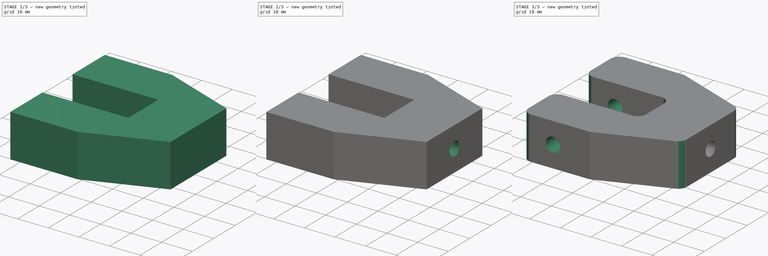
[diagram: build sequence overview — one tinted view per stage of 3, left to right]
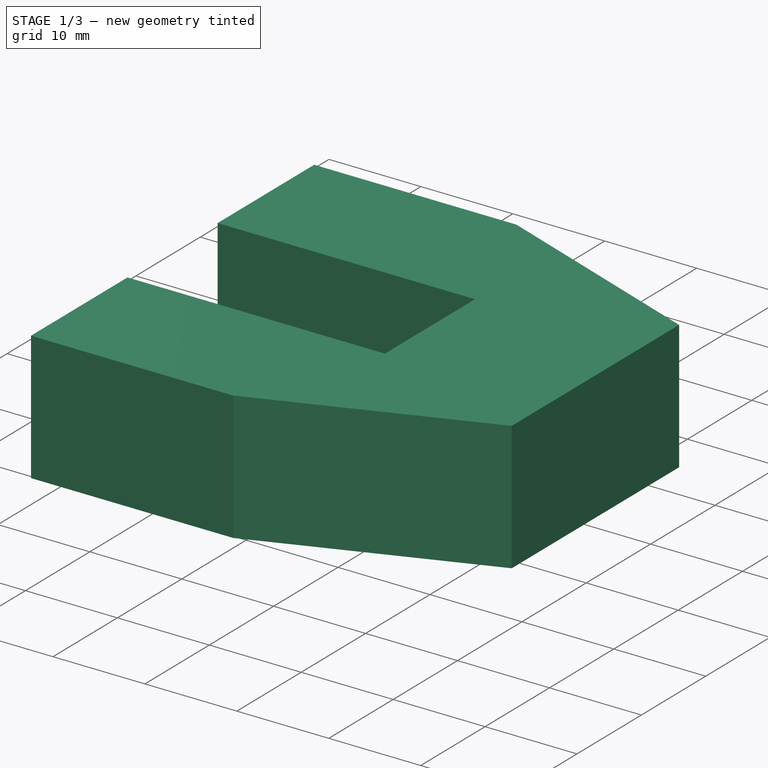
[diagram: stage 1 of 3 — iso view after this stage's code; geometry added in this stage tinted green]
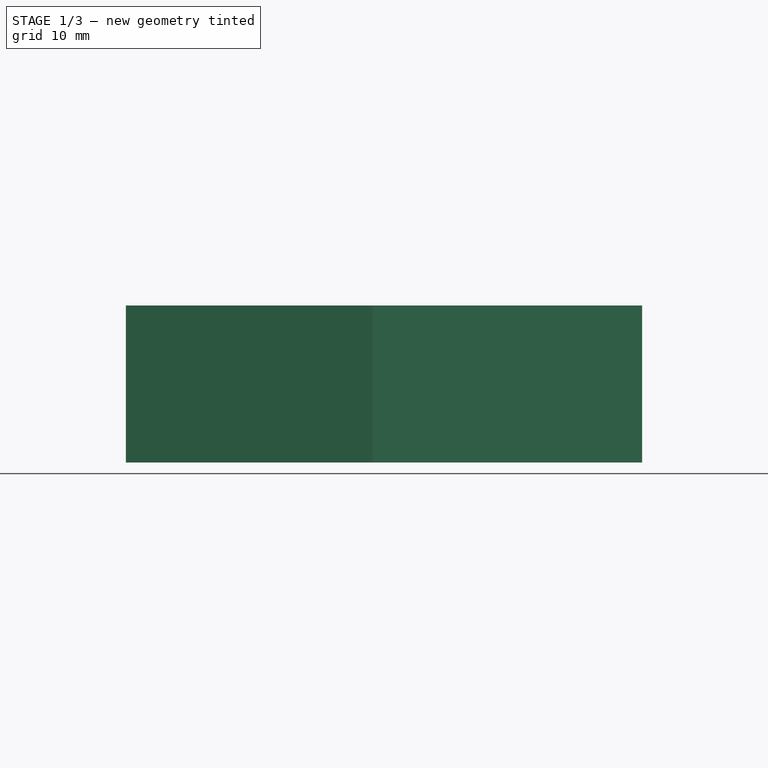
[diagram: stage 1 of 3 — front view after this stage's code; geometry added in this stage tinted green]
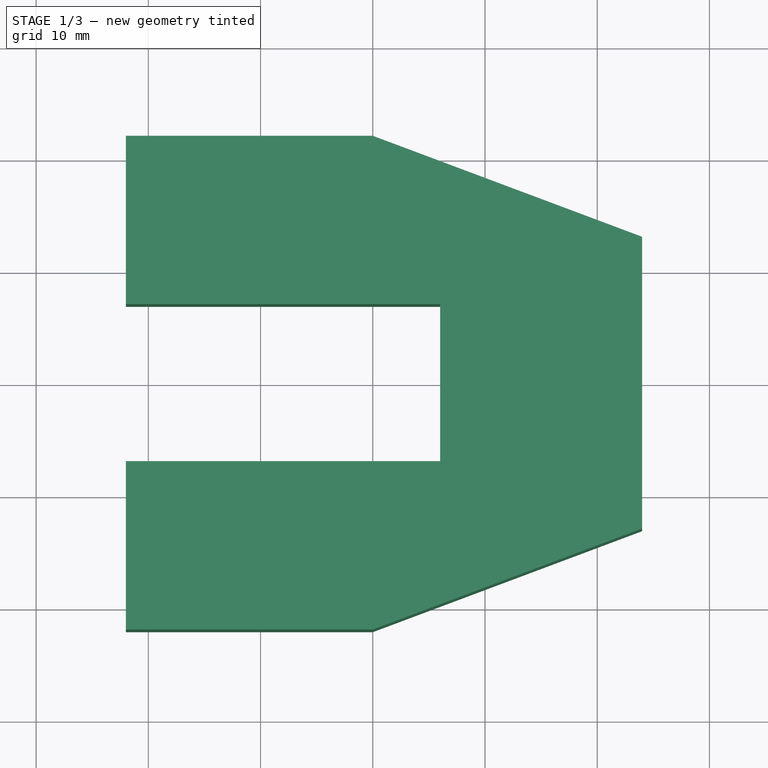
[diagram: stage 1 of 3 — top view after this stage's code; geometry added in this stage tinted green]
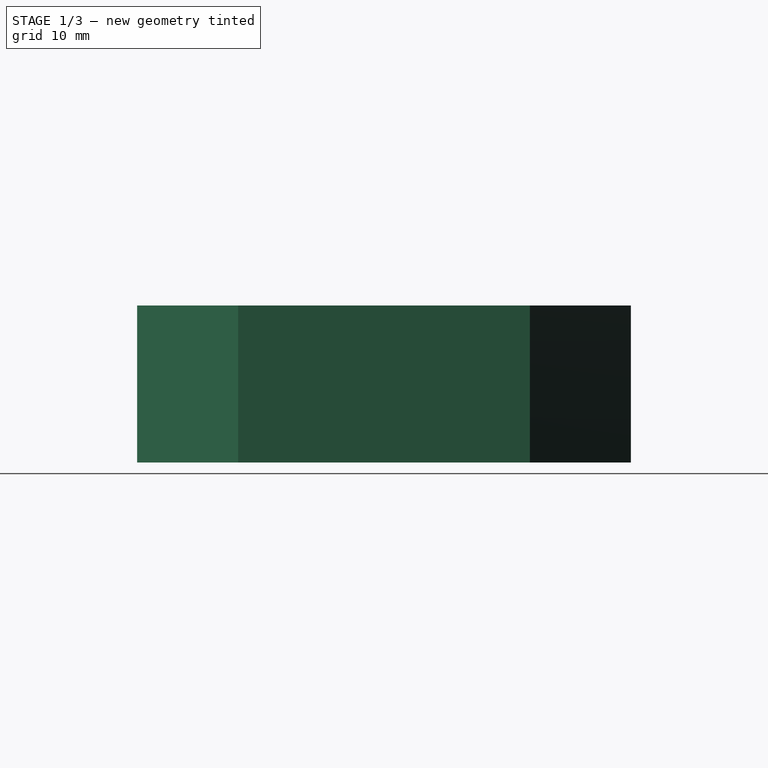
[diagram: stage 1 of 3 — right view after this stage's code; geometry added in this stage tinted green]
FCSTD DOCUMENT  (FreeCAD 0.18R16145 (Git))
Label: steering_fork
License: All rights reserved
LicenseURL: http://en.wikipedia.org/wiki/All_rights_reserved
objects: Sketcher::SketchObject×4, PartDesign::Pocket×3, PartDesign::Pad×1, PartDesign::Fillet×1, PartDesign::Body×1
note: 14 computed .brp shape members not serialized (recipe doc carries the construction recipe); baked Part::Feature solids carry a one-line shape summary decoded from their .brp

FEATURE [Sketcher::SketchObject] Sketch
  MapMode = 5
  Support = -> [XY_Plane]
  expr: Constraints[19] = Constraints.clearance_top
  sketch-geometry (16):
    g0: LineSegment [constr] StartX=-150 StartY=6 StartZ=0 EndX=0 EndY=6 EndZ=0
    g1: LineSegment [constr] StartX=0 StartY=6 StartZ=0 EndX=0 EndY=-6 EndZ=0
    g2: LineSegment [constr] StartX=0 StartY=-6 StartZ=0 EndX=-150 EndY=-6 EndZ=0
    g3: LineSegment [constr] StartX=-150 StartY=-6 StartZ=0 EndX=-150 EndY=6 EndZ=0
    g4: LineSegment StartX=-22 StartY=7 StartZ=0 EndX=6 EndY=7 EndZ=0
    g5: LineSegment StartX=6 StartY=7 StartZ=0 EndX=6 EndY=-7 EndZ=0
    g6: LineSegment StartX=6 StartY=-7 StartZ=0 EndX=-22 EndY=-7 EndZ=0
    g7: GeomPoint X=-12 Y=0 Z=0
    g8: LineSegment StartX=-22 StartY=7 StartZ=0 EndX=-22 EndY=22 EndZ=0
    g9: LineSegment StartX=-22 StartY=22 StartZ=0 EndX=0 EndY=22 EndZ=0
    g10: LineSegment StartX=0 StartY=-22 StartZ=0 EndX=24 EndY=-13 EndZ=0
    g11: LineSegment StartX=24 StartY=-13 StartZ=0 EndX=24 EndY=13 EndZ=0
    g12: LineSegment StartX=24 StartY=13 StartZ=0 EndX=0 EndY=22 EndZ=0
    g13: LineSegment [constr] StartX=0 StartY=22 StartZ=0 EndX=0 EndY=-22 EndZ=0
    g14: LineSegment StartX=-22 StartY=-7 StartZ=0 EndX=-22 EndY=-22 EndZ=0
    g15: LineSegment StartX=-22 StartY=-22 StartZ=0 EndX=0 EndY=-22 EndZ=0
  constraints (43):
    c: Coincident(g0,g1)
    c: Coincident(g1,g2)
    c: Coincident(g2,g3)
    c: Coincident(g3,g0)
    c: Horizontal(g0)
    c: Horizontal(g2)
    c: Vertical(g1)
    c: Vertical(g3)
    c: DistanceY(g1,g1) = 12
    c: DistanceX(g0,g0) = 150
    c: Symmetric(g1,g0,g-1)
    c: Horizontal(g4)
    c: Coincident(g5,g4)
    c: Vertical(g5)
    c: Coincident(g6,g5)
    c: Horizontal(g6)
    c: PointOnObject(g7,g-1)
    c: DistanceX(g7,g-1) = 12
    c: DistanceY(g0,g4) = 1  'clearance_top'
    c: DistanceY(g5,g1) = 1
    c: Vertical(g4,g6)
    c: DistanceX(g-1,g4) = 6  'clearance_depth'
    c: Coincident(g8,g4)
    c: Vertical(g8)
    c: Coincident(g9,g8)
    c: Coincident(g11,g10)
    c: Coincident(g12,g11)
    c: Coincident(g12,g9)
    c: Coincident(g13,g9)
    c: Vertical(g13)
    c: Symmetric(g10,g9,g-1)
    c: Coincident(g14,g6)
    c: Vertical(g14)
    c: Coincident(g15,g14)
    c: Coincident(g15,g10)
    c: Coincident(g13,g10)
    c: DistanceY(g10,g-1) = 22
    c: Symmetric(g11,g10,g-1)
    c: DistanceY(g11,g11) = 26
    c: DistanceX(g5,g10) = 18
    c: DistanceX(g6,g7) = 10  'dist_from_end'
    c: Horizontal(g15)
    c: Horizontal(g9)
FEATURE [PartDesign::Pad] Pad
  Length = 14
  Length2 = 100
  Profile = -> Sketch
  Type = 0
FEATURE [Sketcher::SketchObject] Sketch001
  ExternalGeometry = -> [Pad]
  MapMode = 5
  Placement = pos=(6,0,0) rot=(0.57735,-0.57735,-0.57735;2.0944rad)
  Support = -> [Pad]
  sketch-geometry (8):
    g0: LineSegment StartX=-2.02073 StartY=3.5 StartZ=0 EndX=2.02073 EndY=3.5 EndZ=0
    g1: LineSegment StartX=2.02073 StartY=3.5 StartZ=0 EndX=4.04145 EndY=7 EndZ=0
    g2: LineSegment StartX=4.04145 StartY=7 StartZ=0 EndX=2.02073 EndY=10.5 EndZ=0
    g3: LineSegment StartX=2.02073 StartY=10.5 StartZ=0 EndX=-2.02073 EndY=10.5 EndZ=0
    g4: LineSegment StartX=-2.02073 StartY=10.5 StartZ=0 EndX=-4.04145 EndY=7 EndZ=0
    g5: LineSegment StartX=-4.04145 StartY=7 StartZ=0 EndX=-2.02073 EndY=3.5 EndZ=0
    g6: Circle [constr] CenterX=2e-16 CenterY=7 CenterZ=0 NormalX=0 NormalY=0 NormalZ=1 AngleXU=0 Radius=4.04145
    g7: LineSegment [constr] StartX=7 StartY=14 StartZ=0 EndX=-7 EndY=-1.8e-15 EndZ=0
  constraints (18):
    c: Coincident(g0,g1)
    c: Coincident(g1,g2)
    c: Coincident(g2,g3)
    c: Coincident(g3,g4)
    c: Coincident(g4,g5)
    c: Coincident(g5,g0)
    c: Equal(g0, g1-g5) x5
    c: PointOnObject(g0,g6)
    c: PointOnObject(g1,g6)
    c: PointOnObject(g2,g6)
    c: PointOnObject(g3,g6)
    c: PointOnObject(g4,g6)
    c: PointOnObject(g5,g6)
    c: Horizontal(g0)
    c: Coincident(g7,g-4)
    c: Coincident(g7,g-3)
    c: Symmetric(g7,g7,g6)
    c: DistanceY(g0,g2) = 7
FEATURE [PartDesign::Pocket] Pocket
  BaseFeature = -> Pad
  Length = 6
  Length2 = 100
  Profile = -> Sketch001
  Type = 0
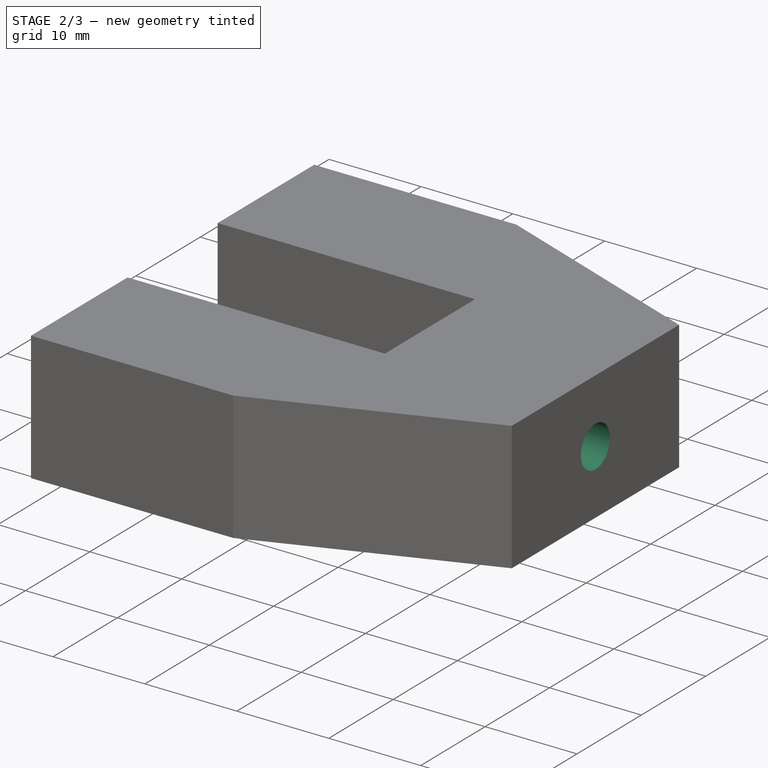
[diagram: stage 2 of 3 — iso view after this stage's code; geometry added in this stage tinted green]
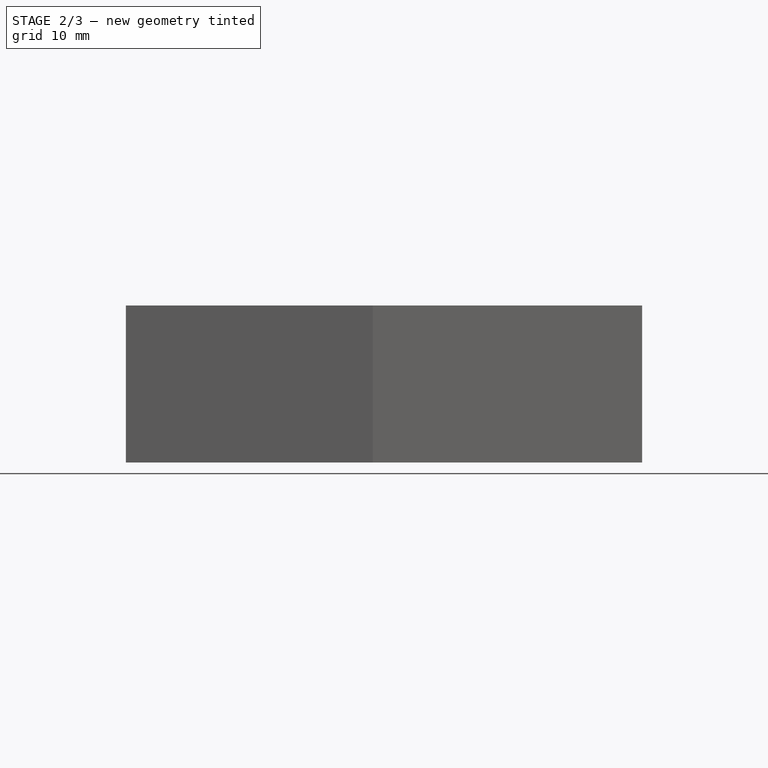
[diagram: stage 2 of 3 — front view after this stage's code; geometry added in this stage tinted green]
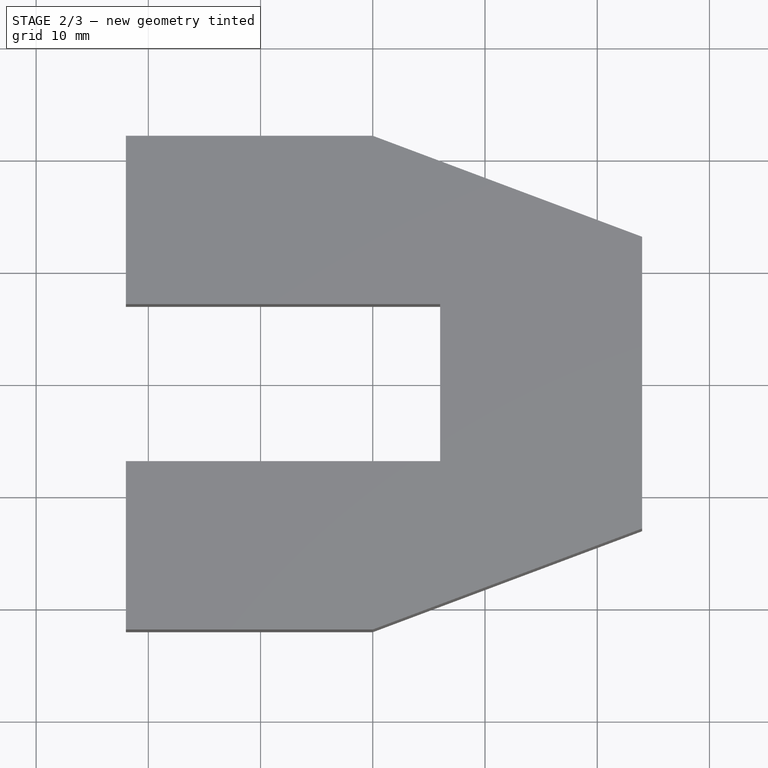
[diagram: stage 2 of 3 — top view after this stage's code; geometry added in this stage tinted green]
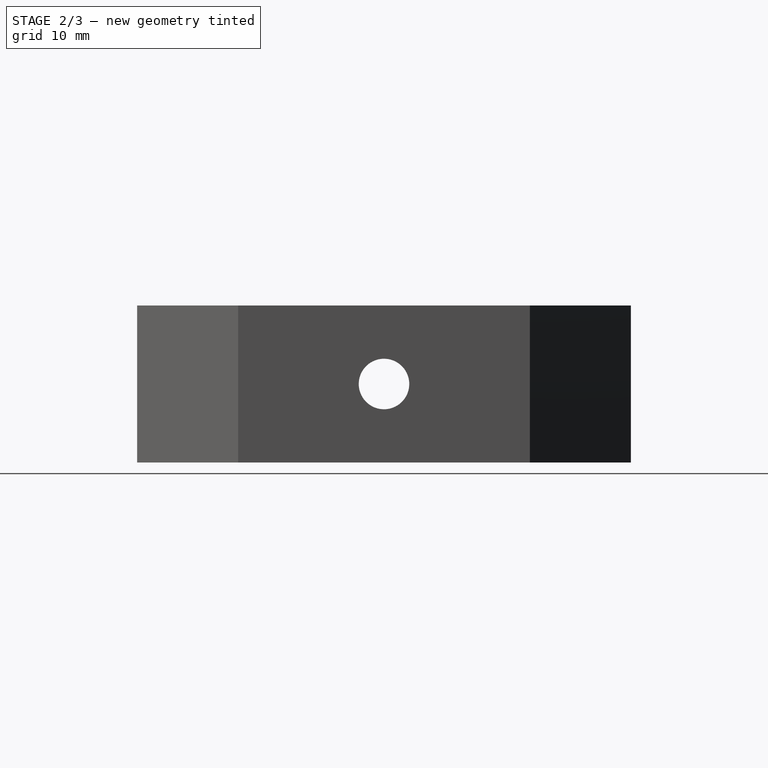
[diagram: stage 2 of 3 — right view after this stage's code; geometry added in this stage tinted green]
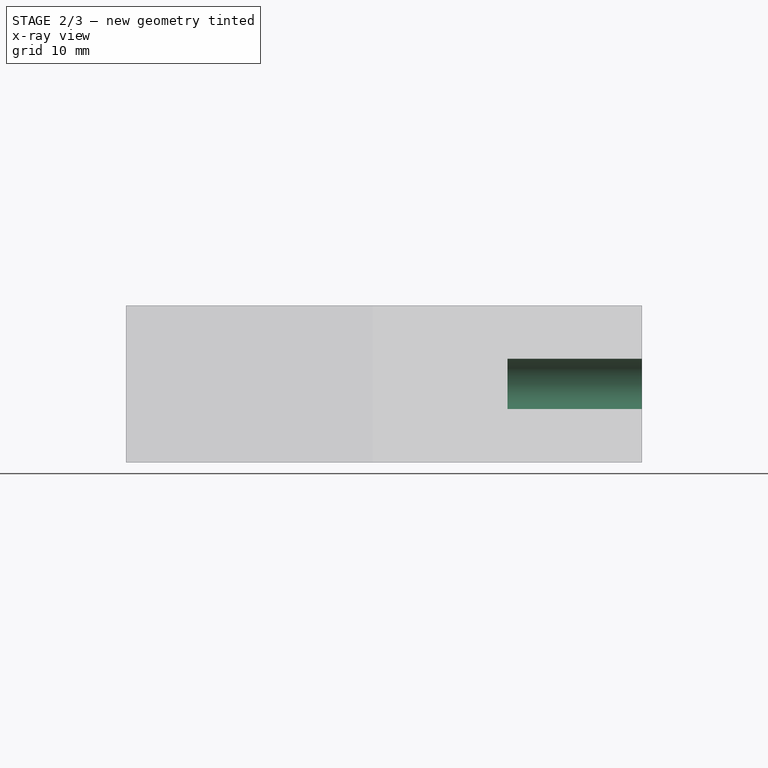
[diagram: stage 2 of 3 — x-ray composite at the front view; earlier geometry ghosted, this stage's added geometry solid]
FEATURE [Sketcher::SketchObject] Sketch002
  ExternalGeometry = -> [Pocket]
  MapMode = 5
  Placement = pos=(24,0,0) rot=(0.57735,0.57735,0.57735;2.0944rad)
  Support = -> [Pocket]
  sketch-geometry (1):
    g0: Circle CenterX=-7e-16 CenterY=7 CenterZ=0 NormalX=0 NormalY=0 NormalZ=1 AngleXU=0 Radius=2.25
  constraints (2):
    c: Symmetric(g-4,g-3,g0)
    c: Diameter(g0) = 4.5
FEATURE [PartDesign::Pocket] Pocket001
  BaseFeature = -> Pocket
  Length = 5
  Length2 = 100
  Profile = -> Sketch002
  Type = 1
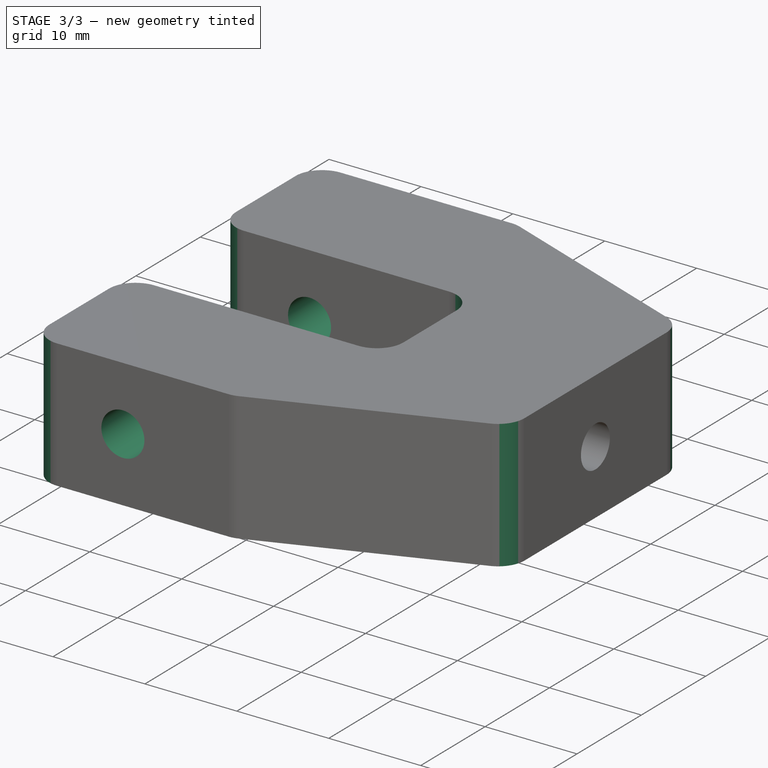
[diagram: stage 3 of 3 — iso view after this stage's code; geometry added in this stage tinted green]
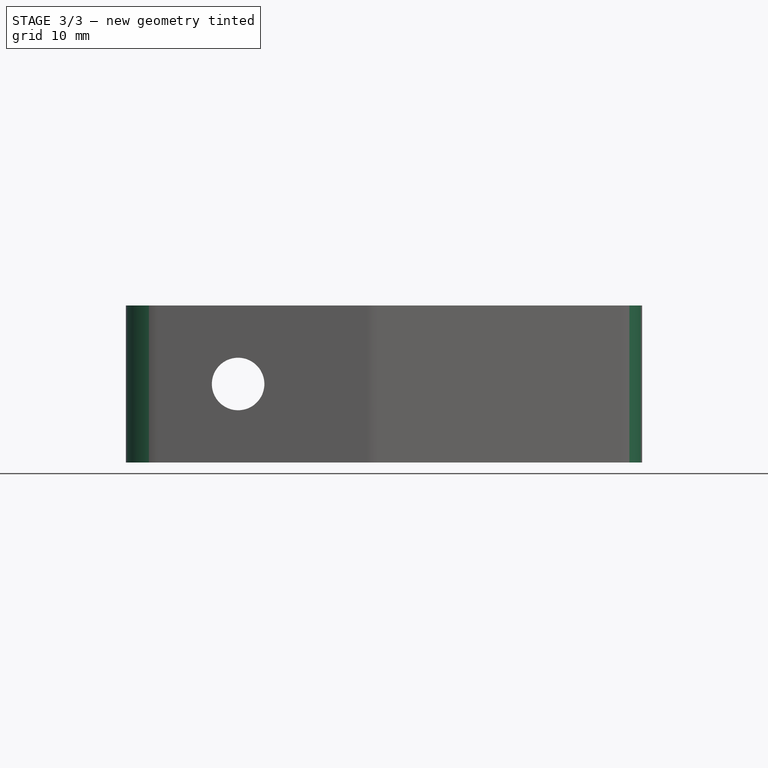
[diagram: stage 3 of 3 — front view after this stage's code; geometry added in this stage tinted green]
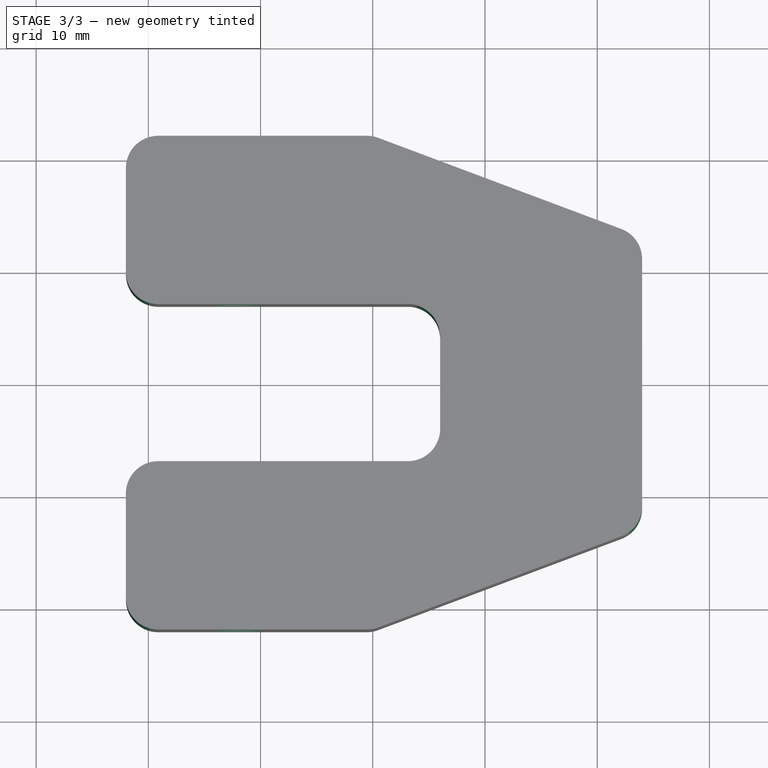
[diagram: stage 3 of 3 — top view after this stage's code; geometry added in this stage tinted green]
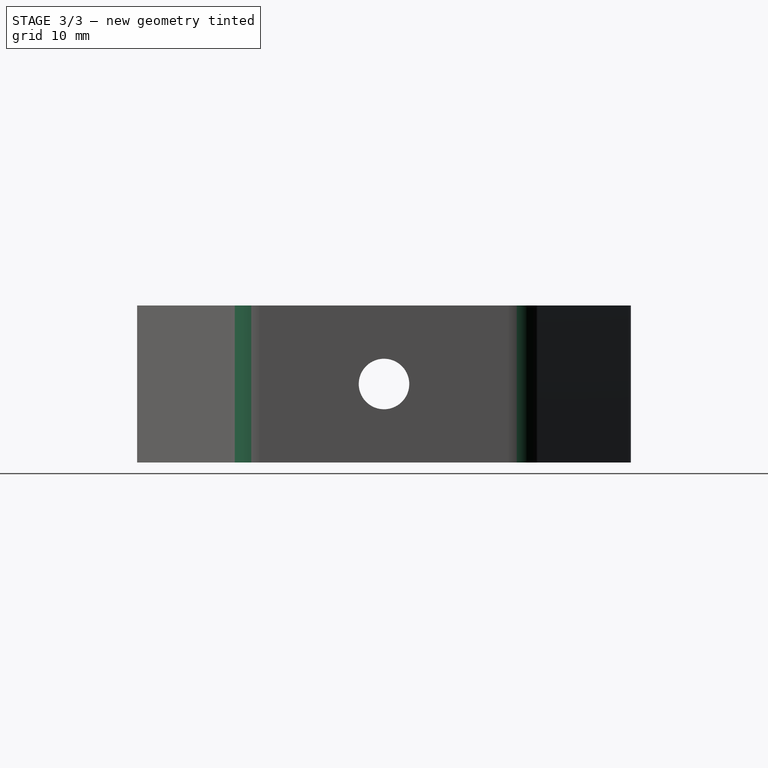
[diagram: stage 3 of 3 — right view after this stage's code; geometry added in this stage tinted green]
FEATURE [Sketcher::SketchObject] Sketch003
  ExternalGeometry = -> [Pocket001]
  MapMode = 5
  Placement = pos=(0,7,0) rot=(1,0,0;1.5708rad)
  Support = -> [Pocket001]
  expr: Constraints[0] = Sketch.Constraints.dist_from_end
  sketch-geometry (2):
    g0: Circle CenterX=-12 CenterY=7 CenterZ=0 NormalX=0 NormalY=0 NormalZ=1 AngleXU=0 Radius=2.33971
    g1: GeomPoint X=-22 Y=7 Z=0
  constraints (3):
    c: DistanceX(g-5,g0) = 10
    c: Symmetric(g-4,g-5,g1)
    c: Horizontal(g0,g1)
FEATURE [PartDesign::Pocket] Pocket002
  BaseFeature = -> Pocket001
  Length = 1000
  Length2 = 100
  Profile = -> Sketch003
  Type = 4
FEATURE [PartDesign::Fillet] Fillet
  Base = -> Pocket002 [Edge25,Edge4,Edge35,Edge37,Edge38,Edge40,Edge41,Edge34,Edge6,Edge1]
  BaseFeature = -> Pocket002
  Radius = 2.88
FEATURE [PartDesign::Body] Body
  Group = -> [Sketch,Pad,Sketch001,Pocket,Sketch002,Pocket001,Sketch003,Pocket002,Fillet]
  Origin = -> Origin
  Tip = -> Fillet
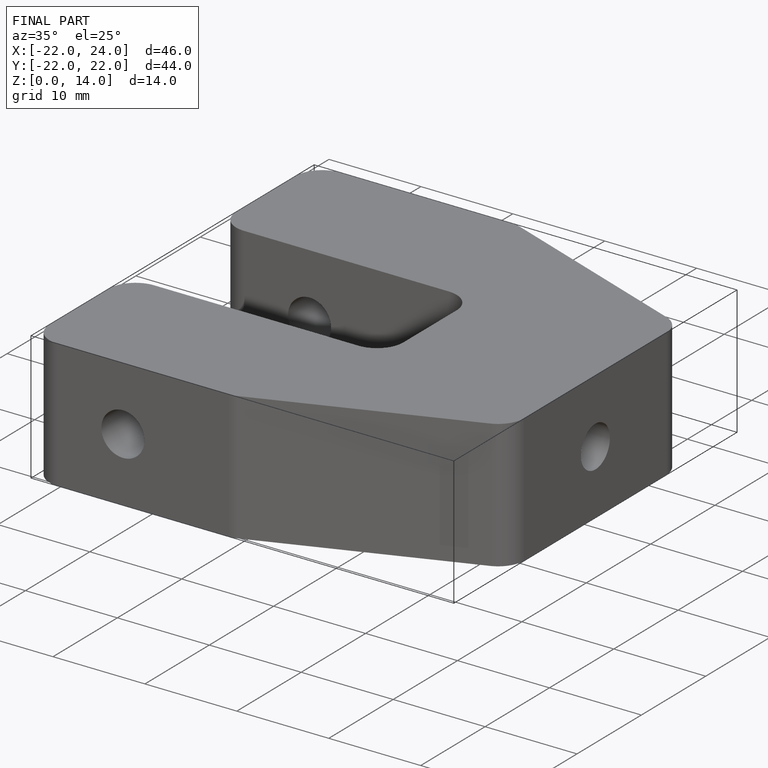
[diagram: finished part — iso view with bounding-box wireframe]
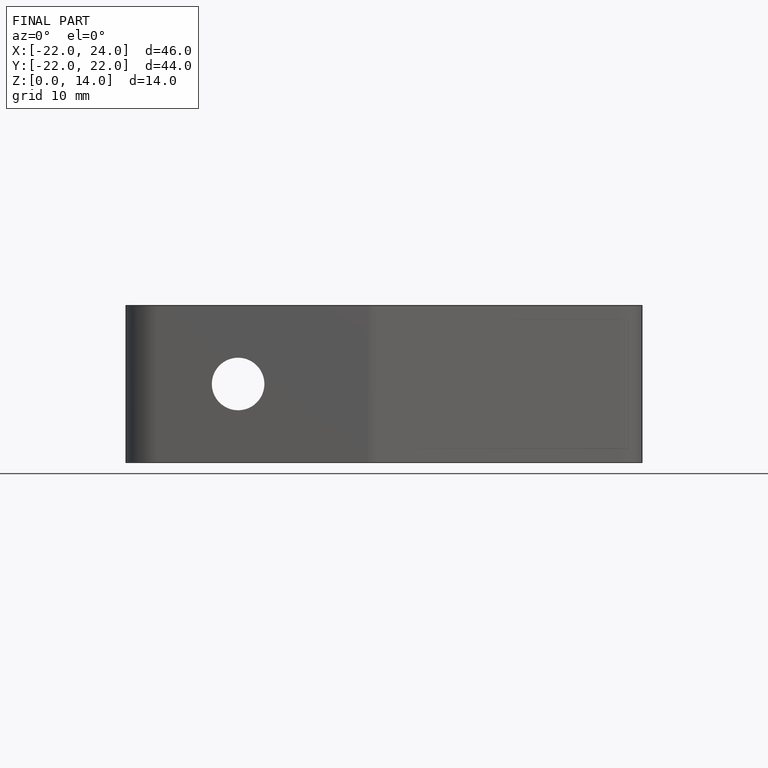
[diagram: finished part — front view with bounding-box wireframe]
